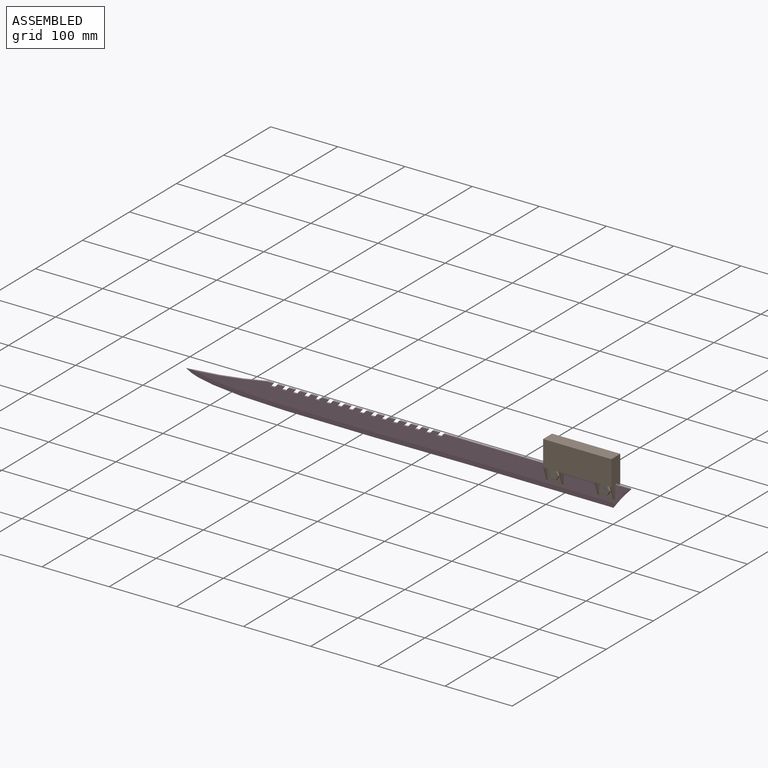
[diagram: assembled view]
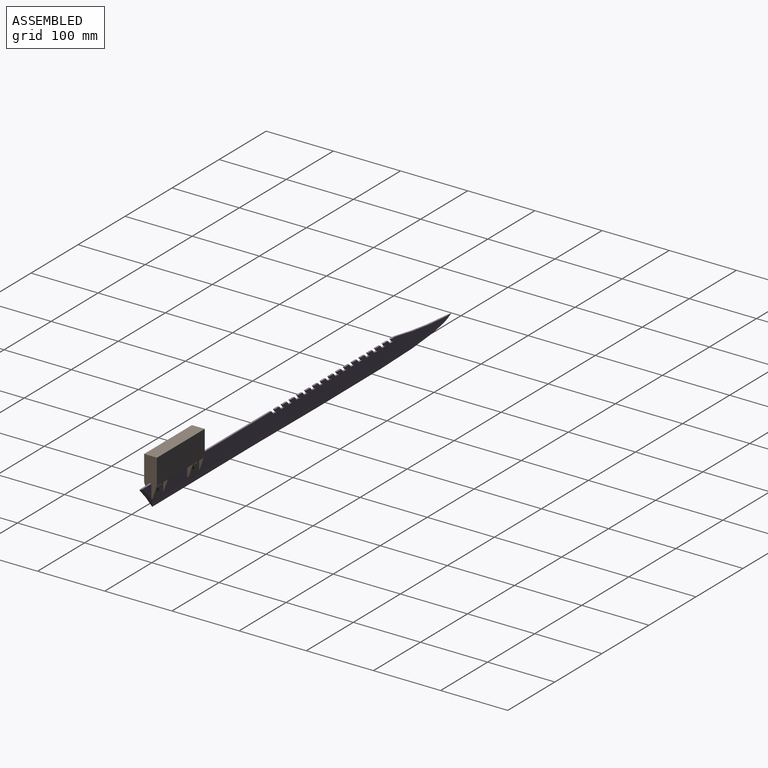
[diagram: assembled view, second angle]
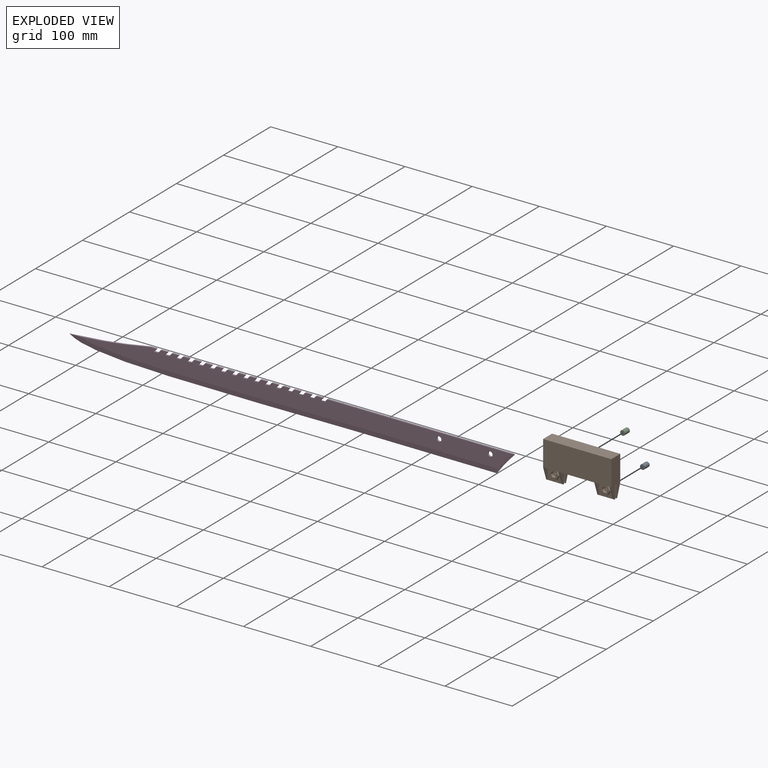
[diagram: exploded view]
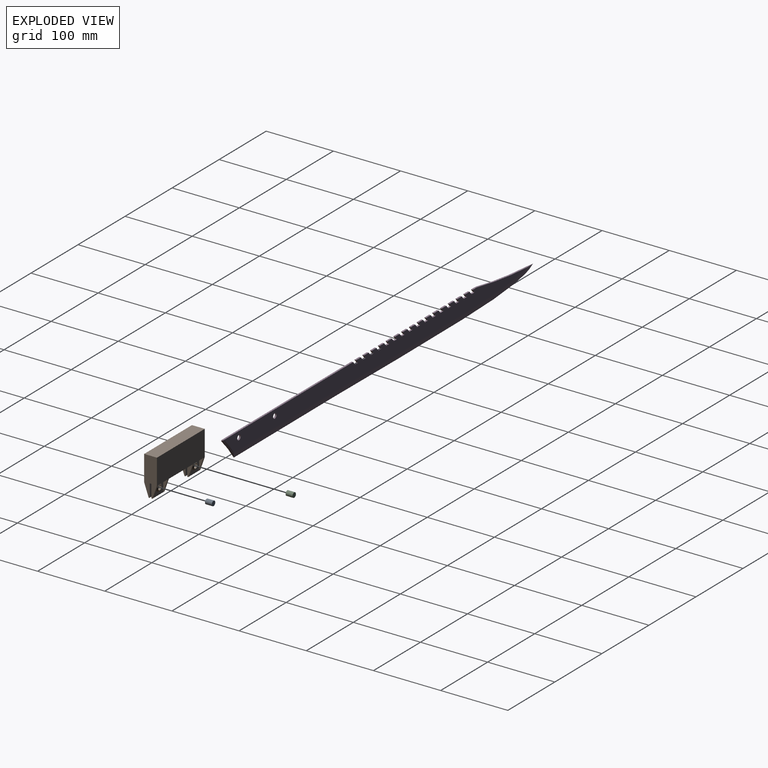
[diagram: exploded view, second angle]
ASSEMBLY  parts=4 mates=6
PART A: 3 faces, bbox 7.3x10.3x7.3 mm
  f0: plane 7.26x7.26mm, normal (0,-1,0), area 41.4mm2, adj f2
  f1: plane 7.26x7.26mm, normal (0,1,0), area 41.4mm2, adj f2
  f2: cylinder r=3.63mm len=10.29mm, axis (0,1,0), area 234.8mm2, adj f0,f1
PART B: 114 faces, bbox 101.6x19.1x57.2 mm
  f0: plane 7.77x7.77mm, normal (0,-1,0), area 5.4mm2, adj f1,f2
  f1: torus R=3.89mm, axis (0,-1,0), area 6.7mm2, adj f0,f3
  f2: cylinder r=3.66mm len=7.32mm, axis (0,-1,0), area 46.2mm2, adj f0,f67
  f3: cylinder r=3.66mm len=7.32mm, axis (0,-1,0), area 29.9mm2, adj f1,f57
  f4: plane 101.48x37.67mm, normal (0,-1,0), area 3822.5mm2, adj f12,f19,f24,f25
  f5: plane 101.48x37.67mm, normal (0,1,0), area 3822.5mm2, adj f11,f25,f26,f32
  f6: plane 18x6.3mm, normal (0,-0.94,-0.33), area 47.3mm2, adj f14,f19,f78,f79
  f7: plane 18x6.3mm, normal (0,-0.94,-0.33), area 47.3mm2, adj f19,f22,f36,f68
  f8: plane 18x6.3mm, normal (0,0.94,-0.33), area 47.3mm2, adj f16,f32,f38,f64
  f9: plane 18x6.3mm, normal (0,0.94,-0.33), area 48.4mm2, adj f32,f40,f64,f65
  f10: torus R=2.48mm, axis (1,0,0), area 0.1mm2, adj f11,f16,f32,f51
  f11: cylinder r=0.06mm len=37.67mm, axis (0,0,-1), area 3.6mm2, adj f5,f10,f25,f51
  f12: cylinder r=0.06mm len=37.67mm, axis (0,0,1), area 3.6mm2, adj f4,f13,f25,f51
  f13: torus R=2.48mm, axis (1,0,0), area 0.1mm2, adj f12,f14,f19,f51
  f14: cylinder r=0.06mm len=18.02mm, axis (0,0.33,-0.94), area 1.8mm2, adj f6,f13,f17,f51
  f15: torus R=0.9mm, axis (1,0,0), area 0.1mm2, adj f16,f41,f51,f64
  f16: cylinder r=0.06mm len=18.02mm, axis (0,0.33,0.94), area 1.8mm2, adj f8,f10,f15,f51
  f17: torus R=0.9mm, axis (1,0,0), area 0.1mm2, adj f14,f51,f52,f78
  f18: plane 18x6.3mm, normal (0,-0.94,-0.33), area 48.4mm2, adj f19,f34,f53,f78
  f19: cylinder r=2.54mm len=101.48mm, axis (1,0,0), area 48.2mm2, adj f4,f6,f7,f13,f18,f20,f23,f33
  f20: plane 18x6.3mm, normal (0,-0.94,-0.33), area 48.4mm2, adj f19,f55,f68,f69
  f21: torus R=0.9mm, axis (1,0,0), area 0.1mm2, adj f22,f56,f60,f68
  f22: cylinder r=0.06mm len=18.02mm, axis (0,0.33,-0.94), area 1.8mm2, adj f7,f21,f23,f60
  f23: torus R=2.48mm, axis (1,0,0), area 0.1mm2, adj f19,f22,f24,f60
  f24: cylinder r=0.06mm len=37.67mm, axis (0,0,-1), area 3.6mm2, adj f4,f23,f25,f60
  f25: plane 101.6x19.05mm, normal (0,0,1), area 1935.5mm2, adj f4,f5,f11,f12,f24,f26,f51,f60
  f26: cylinder r=0.06mm len=37.67mm, axis (0,0,1), area 3.6mm2, adj f5,f25,f27,f60
  f27: torus R=2.48mm, axis (1,0,0), area 0.1mm2, adj f26,f28,f32,f60
  f28: cylinder r=0.06mm len=18.02mm, axis (0,0.33,0.94), area 1.8mm2, adj f27,f30,f31,f60
  f29: plane 18x6.3mm, normal (0,0.94,-0.33), area 48.4mm2, adj f32,f44,f45,f49
  f30: torus R=0.9mm, axis (1,0,0), area 0.1mm2, adj f28,f42,f45,f60
  f31: plane 18x6.3mm, normal (0,0.94,-0.33), area 47.3mm2, adj f28,f32,f45,f46
  f32: cylinder r=2.54mm len=101.48mm, axis (-1,0,0), area 48.2mm2, adj f5,f8,f9,f10,f27,f29,f31,f37
  f33: plane 20.32x6.63mm, normal (0,0,-1), area 134.7mm2, adj f19,f34,f79,f80
  f34: plane 18.77x6.63mm, normal (-1,0,0), area 63.5mm2, adj f18,f19,f33,f78,f80
  f35: plane 20.32x6.63mm, normal (0,0,-1), area 134.7mm2, adj f19,f36,f69,f70
  f36: plane 18.77x6.63mm, normal (-1,0,0), area 63.5mm2, adj f7,f19,f35,f68,f70
  f37: plane 20.32x6.63mm, normal (0,0,-1), area 134.7mm2, adj f32,f38,f65,f66
  f38: plane 18.76x6.63mm, normal (1,0,0), area 63.5mm2, adj f8,f32,f37,f64,f66
  f39: plane 50.8x8.22mm, normal (0,0,-1), area 417.5mm2, adj f32,f40,f49,f58
  f40: plane 19.05x8.22mm, normal (1,0,0), area 93.5mm2, adj f9,f32,f39,f41,f58,f64
  f41: cylinder r=0.97mm len=25.4mm, axis (1,0,0), area 37.7mm2, adj f15,f40,f51,f58,f64
  f42: cylinder r=0.97mm len=25.4mm, axis (1,0,0), area 37.7mm2, adj f30,f45,f49,f58,f60
  f43: plane 20.32x6.63mm, normal (0,0,-1), area 134.7mm2, adj f32,f44,f46,f47
  f44: plane 18.76x6.63mm, normal (1,0,0), area 63.5mm2, adj f29,f32,f43,f45,f47
  f45: cylinder r=0.97mm len=25.34mm, axis (-1,0,0), area 20.7mm2, adj f29,f30,f31,f42,f44,f46,f47,f49
  f46: plane 18.76x6.63mm, normal (-1,0,0), area 63.5mm2, adj f31,f32,f43,f45,f47
  f47: plane 20.32x18.76mm, normal (0,1,0), area 280.4mm2, adj f43,f44,f45,f46,f48
  f48: torus R=0.78mm, axis (0,-1,0), area 85.7mm2, adj f47,f94
  f49: plane 19.05x8.22mm, normal (-1,0,0), area 93.5mm2, adj f29,f32,f39,f42,f45,f58
  f50: plane 101.6x2.54mm, normal (0,0,-1), area 258.1mm2, adj f51,f58,f60,f62
  f51: plane 57.09x18.93mm, normal (-1,0,0), area 903.6mm2, adj f10,f11,f12,f13,f14,f15,f16,f17
  f52: cylinder r=0.97mm len=25.4mm, axis (-1,0,0), area 37.7mm2, adj f17,f51,f53,f62,f78
  f53: plane 19.05x8.22mm, normal (1,0,0), area 93.5mm2, adj f18,f19,f52,f54,f62,f78
  f54: plane 50.8x8.22mm, normal (0,0,-1), area 417.5mm2, adj f19,f53,f55,f62
  f55: plane 19.05x8.22mm, normal (-1,0,0), area 93.5mm2, adj f19,f20,f54,f56,f62,f68
  f56: cylinder r=0.97mm len=25.4mm, axis (-1,0,0), area 37.7mm2, adj f21,f55,f60,f62,f68
  f57: torus R=3.89mm, axis (0,-1,0), area 6.7mm2, adj f3,f58
  f58: plane 101.6x18.85mm, normal (0,-1,0), area 901.2mm2, adj f39,f40,f41,f42,f49,f50,f51,f57
  f59: torus R=3.89mm, axis (0,-1,0), area 6.7mm2, adj f58,f99
  f60: plane 57.09x18.93mm, normal (1,0,0), area 903.6mm2, adj f21,f22,f23,f24,f25,f26,f27,f28
  f61: torus R=3.89mm, axis (0,1,0), area 6.7mm2, adj f62,f97
  f62: plane 101.6x18.85mm, normal (0,1,0), area 901.2mm2, adj f50,f51,f52,f53,f54,f55,f56,f60
  f63: torus R=3.89mm, axis (0,1,0), area 6.7mm2, adj f62,f98
  f64: cylinder r=0.97mm len=25.34mm, axis (1,0,0), area 20.7mm2, adj f8,f9,f15,f38,f40,f41,f65,f66
  f65: plane 18.76x6.63mm, normal (-1,0,0), area 63.5mm2, adj f9,f32,f37,f64,f66
  f66: plane 20.32x18.76mm, normal (0,1,0), area 280.4mm2, adj f37,f38,f64,f65,f67
  f67: torus R=0.78mm, axis (0,-1,0), area 85.7mm2, adj f2,f66
  f68: cylinder r=0.97mm len=25.34mm, axis (-1,0,0), area 20.7mm2, adj f7,f20,f21,f36,f55,f56,f69,f70
  f69: plane 18.77x6.63mm, normal (1,0,0), area 63.5mm2, adj f19,f20,f35,f68,f70
  f70: plane 20.32x18.77mm, normal (0,-1,0), area 234.4mm2, adj f35,f36,f68,f69,f71,f72,f73,f74
  f71: plane 7.52x2.11mm, normal (0,0,1), area 15.9mm2, adj f70,f72,f76,f109
  f72: plane 6.51x3.76mm, normal (0.87,0,0.5), area 15.9mm2, adj f70,f71,f73,f111
  f73: plane 6.51x3.76mm, normal (0.87,0,-0.5), area 15.9mm2, adj f70,f72,f74,f110
  f74: plane 7.52x2.11mm, normal (0,0,-1), area 15.9mm2, adj f70,f73,f75,f108
  f75: plane 6.51x3.76mm, normal (-0.87,0,-0.5), area 15.9mm2, adj f70,f74,f76,f106
  f76: plane 6.51x3.76mm, normal (-0.87,0,0.5), area 15.9mm2, adj f70,f71,f75,f107
  f77: plane 13.87x12.01mm, normal (0,-1,0), area 76.9mm2, adj f106,f107,f108,f109,f110,f111,f113
  f78: cylinder r=0.97mm len=25.34mm, axis (-1,0,0), area 20.7mm2, adj f6,f17,f18,f34,f52,f53,f79,f80
  f79: plane 18.77x6.63mm, normal (1,0,0), area 63.5mm2, adj f6,f19,f33,f78,f80
  f80: plane 20.32x18.77mm, normal (0,-1,0), area 234.4mm2, adj f33,f34,f78,f79,f81,f82,f83,f84
  f81: plane 6.51x3.76mm, normal (0.87,0,-0.5), area 15.9mm2, adj f80,f82,f86,f104
  f82: plane 7.52x2.11mm, normal (0,0,-1), area 15.9mm2, adj f80,f81,f83,f105
  f83: plane 6.51x3.76mm, normal (-0.87,0,-0.5), area 15.9mm2, adj f80,f82,f84,f103
  f84: plane 6.51x3.76mm, normal (-0.87,0,0.5), area 15.9mm2, adj f80,f83,f85,f101
  f85: plane 7.52x2.11mm, normal (0,0,1), area 15.9mm2, adj f80,f84,f86,f100
  f86: plane 6.51x3.76mm, normal (0.87,0,0.5), area 15.9mm2, adj f80,f81,f85,f102
  f87: plane 13.87x12.01mm, normal (0,-1,0), area 76.9mm2, adj f100,f101,f102,f103,f104,f105,f112
  f88: cylinder r=3.66mm len=7.32mm, axis (0,-1,0), area 54.3mm2, adj f89,f113
  f89: plane 7.77x7.77mm, normal (0,1,0), area 5.4mm2, adj f88,f90
  f90: torus R=3.89mm, axis (0,1,0), area 6.7mm2, adj f89,f98
  f91: cylinder r=3.66mm len=7.32mm, axis (0,-1,0), area 54.3mm2, adj f92,f112
  f92: plane 7.77x7.77mm, normal (0,1,0), area 5.4mm2, adj f91,f93
  f93: torus R=3.89mm, axis (0,1,0), area 6.7mm2, adj f92,f97
  f94: cylinder r=3.66mm len=7.32mm, axis (0,-1,0), area 46.2mm2, adj f48,f96
  f95: torus R=3.89mm, axis (0,-1,0), area 6.7mm2, adj f96,f99
  f96: plane 7.77x7.77mm, normal (0,-1,0), area 5.4mm2, adj f94,f95
  f97: cylinder r=3.66mm len=7.32mm, axis (0,-1,0), area 29.9mm2, adj f61,f93
  f98: cylinder r=3.66mm len=7.32mm, axis (0,-1,0), area 29.9mm2, adj f63,f90
  f99: cylinder r=3.66mm len=7.32mm, axis (0,-1,0), area 29.9mm2, adj f59,f95
  f100: cylinder r=0.51mm len=7.52mm, axis (1,0,0), area 5.8mm2, adj f85,f87,f101,f102
  f101: cylinder r=0.51mm len=6.77mm, axis (0.5,0,0.87), area 5.8mm2, adj f84,f87,f100,f103
  f102: cylinder r=0.51mm len=6.77mm, axis (0.5,0,-0.87), area 5.8mm2, adj f86,f87,f100,f104
  f103: cylinder r=0.51mm len=6.77mm, axis (-0.5,0,0.87), area 5.8mm2, adj f83,f87,f101,f105
  f104: cylinder r=0.51mm len=6.77mm, axis (-0.5,0,-0.87), area 5.8mm2, adj f81,f87,f102,f105
  f105: cylinder r=0.51mm len=7.52mm, axis (-1,0,0), area 5.8mm2, adj f82,f87,f103,f104
  f106: cylinder r=0.51mm len=6.77mm, axis (-0.5,0,0.87), area 5.8mm2, adj f75,f77,f107,f108
  f107: cylinder r=0.51mm len=6.77mm, axis (0.5,0,0.87), area 5.8mm2, adj f76,f77,f106,f109
  f108: cylinder r=0.51mm len=7.52mm, axis (-1,0,0), area 5.8mm2, adj f74,f77,f106,f110
  f109: cylinder r=0.51mm len=7.52mm, axis (1,0,0), area 5.8mm2, adj f71,f77,f107,f111
  f110: cylinder r=0.51mm len=6.77mm, axis (-0.5,0,-0.87), area 5.8mm2, adj f73,f77,f108,f111
  f111: cylinder r=0.51mm len=6.77mm, axis (0.5,0,-0.87), area 5.8mm2, adj f72,f77,f109,f110
  f112: torus R=3.91mm, axis (0,-1,0), area 9.4mm2, adj f87,f91
  f113: torus R=3.91mm, axis (0,-1,0), area 9.4mm2, adj f77,f88
PART C: 3 faces, bbox 7.3x10.3x7.3 mm
  f0: plane 7.26x7.26mm, normal (0,-1,0), area 41.4mm2, adj f2
  f1: plane 7.26x7.26mm, normal (0,1,0), area 41.4mm2, adj f2
  f2: cylinder r=3.63mm len=10.29mm, axis (0,1,0), area 234.8mm2, adj f0,f1
PART D: 125 faces, bbox 676.6x13.4x45.5 mm
  f0: plane 6.67x2.49mm, normal (0,0,1), area 16.6mm2, adj f31,f47,f49,f122
  f1: plane 10.16x2.49mm, normal (0,0,1), area 25.3mm2, adj f16,f32,f119,f121
  f2: plane 10.16x2.49mm, normal (0,0,1), area 25.3mm2, adj f17,f33,f116,f118
  f3: plane 10.16x2.49mm, normal (0,0,1), area 25.3mm2, adj f18,f34,f113,f115
  f4: plane 10.16x2.49mm, normal (0,0,1), area 25.3mm2, adj f19,f35,f110,f112
  f5: plane 10.16x2.49mm, normal (0,0,1), area 25.3mm2, adj f20,f36,f107,f109
  f6: plane 10.16x2.49mm, normal (0,0,1), area 25.3mm2, adj f21,f37,f104,f106
  f7: plane 10.16x2.49mm, normal (0,0,1), area 25.3mm2, adj f22,f38,f101,f103
  f8: plane 10.16x2.49mm, normal (0,0,1), area 25.3mm2, adj f23,f39,f98,f100
  f9: plane 10.16x2.49mm, normal (0,0,1), area 25.3mm2, adj f24,f40,f95,f97
  f10: plane 10.16x2.49mm, normal (0,0,1), area 25.3mm2, adj f25,f41,f92,f94
  f11: plane 10.16x2.49mm, normal (0,0,1), area 25.3mm2, adj f26,f42,f89,f91
  f12: plane 10.16x2.49mm, normal (0,0,1), area 25.3mm2, adj f27,f43,f86,f88
  f13: plane 10.16x2.49mm, normal (0,0,1), area 25.3mm2, adj f28,f44,f83,f85
  f14: plane 10.16x2.49mm, normal (0,0,1), area 25.3mm2, adj f29,f45,f80,f82
  f15: plane 10.16x2.49mm, normal (0,0,1), area 25.3mm2, adj f30,f46,f76,f79
  f16: cylinder r=0.03mm len=10.18mm, axis (1,0,0), area 0.4mm2, adj f1,f51,f119,f121
  f17: cylinder r=0.03mm len=10.18mm, axis (1,0,0), area 0.4mm2, adj f2,f51,f116,f118
  f18: cylinder r=0.03mm len=10.18mm, axis (1,0,0), area 0.4mm2, adj f3,f51,f113,f115
  f19: cylinder r=0.03mm len=10.18mm, axis (1,0,0), area 0.4mm2, adj f4,f51,f110,f112
  f20: cylinder r=0.03mm len=10.18mm, axis (1,0,0), area 0.4mm2, adj f5,f51,f107,f109
  f21: cylinder r=0.03mm len=10.18mm, axis (1,0,0), area 0.4mm2, adj f6,f51,f104,f106
  f22: cylinder r=0.03mm len=10.18mm, axis (1,0,0), area 0.4mm2, adj f7,f51,f101,f103
  f23: cylinder r=0.03mm len=10.18mm, axis (1,0,0), area 0.4mm2, adj f8,f51,f98,f100
  f24: cylinder r=0.03mm len=10.18mm, axis (1,0,0), area 0.4mm2, adj f9,f51,f95,f97
  f25: cylinder r=0.03mm len=10.18mm, axis (1,0,0), area 0.4mm2, adj f10,f51,f92,f94
  f26: cylinder r=0.03mm len=10.18mm, axis (1,0,0), area 0.4mm2, adj f11,f51,f89,f91
  f27: cylinder r=0.03mm len=10.18mm, axis (1,0,0), area 0.4mm2, adj f12,f51,f86,f88
  f28: cylinder r=0.03mm len=10.18mm, axis (1,0,0), area 0.4mm2, adj f13,f51,f83,f85
  f29: cylinder r=0.03mm len=10.18mm, axis (1,0,0), area 0.4mm2, adj f14,f51,f80,f82
  f30: cylinder r=0.03mm len=10.18mm, axis (1,0,0), area 0.4mm2, adj f15,f51,f76,f79
  f31: cylinder r=0.03mm len=6.67mm, axis (1,0,0), area 0.3mm2, adj f0,f51,f68,f122
  f32: cylinder r=0.03mm len=10.18mm, axis (-1,0,0), area 0.4mm2, adj f1,f52,f119,f121
  f33: cylinder r=0.03mm len=10.18mm, axis (-1,0,0), area 0.4mm2, adj f2,f52,f116,f118
  f34: cylinder r=0.03mm len=10.18mm, axis (-1,0,0), area 0.4mm2, adj f3,f52,f113,f115
  f35: cylinder r=0.03mm len=10.18mm, axis (-1,0,0), area 0.4mm2, adj f4,f52,f110,f112
  f36: cylinder r=0.03mm len=10.18mm, axis (-1,0,0), area 0.4mm2, adj f5,f52,f107,f109
  f37: cylinder r=0.03mm len=10.18mm, axis (-1,0,0), area 0.4mm2, adj f6,f52,f104,f106
  f38: cylinder r=0.03mm len=10.18mm, axis (-1,0,0), area 0.4mm2, adj f7,f52,f101,f103
  f39: cylinder r=0.03mm len=10.18mm, axis (-1,0,0), area 0.4mm2, adj f8,f52,f98,f100
  f40: cylinder r=0.03mm len=10.18mm, axis (-1,0,0), area 0.4mm2, adj f9,f52,f95,f97
  f41: cylinder r=0.03mm len=10.18mm, axis (-1,0,0), area 0.4mm2, adj f10,f52,f92,f94
  f42: cylinder r=0.03mm len=10.18mm, axis (-1,0,0), area 0.4mm2, adj f11,f52,f89,f91
  f43: cylinder r=0.03mm len=10.18mm, axis (-1,0,0), area 0.4mm2, adj f12,f52,f86,f88
  f44: cylinder r=0.03mm len=10.18mm, axis (-1,0,0), area 0.4mm2, adj f13,f52,f83,f85
  f45: cylinder r=0.03mm len=10.18mm, axis (-1,0,0), area 0.4mm2, adj f14,f52,f80,f82
  f46: cylinder r=0.03mm len=10.18mm, axis (-1,0,0), area 0.4mm2, adj f15,f52,f76,f79
  f47: cylinder r=0.03mm len=6.67mm, axis (-1,0,0), area 0.3mm2, adj f0,f52,f69,f122
  f48: plane 278.84x2.49mm, normal (0,0,1), area 690.9mm2, adj f70,f71,f72,f73,f74,f77
  f49: cylinder r=25.87mm len=5.08mm, axis (0,1,0), area 12.7mm2, adj f0,f50,f68,f69
  f50: cylinder r=762mm len=118.46mm, axis (0,1,0), area 279.4mm2, adj f49,f62,f63,f64,f65,f66,f67
  f51: plane 643.7x26.75mm, normal (0,-1,0), area 14051.7mm2, adj f16,f17,f18,f19,f20,f21,f22,f23
  f52: plane 643.7x26.75mm, normal (0,1,0), area 14051.7mm2, adj f32,f33,f34,f35,f36,f37,f38,f39
  f53: bspline ~153.82x30.21mm, area 984mm2, adj f54,f55,f57,f62
  f54: bspline ~153.82x30.21mm, area 984mm2, adj f53,f56,f58,f63
  f55: bspline ~518.88x13.93mm, area 3559.4mm2, adj f51,f53,f56,f57,f60,f61
  f56: bspline ~518.88x13.93mm, area 3559.5mm2, adj f52,f54,f55,f58,f59,f61
  f57: bspline ~290.36x14.4mm, area 168.6mm2, adj f51,f53,f55,f64
  f58: bspline ~290.47x14.64mm, area 168.6mm2, adj f52,f54,f56,f65
  f59: bspline ~38.7x37.12mm, area 149.9mm2, adj f52,f56,f61,f73
  f60: bspline ~38.7x37.12mm, area 150.2mm2, adj f51,f55,f61,f72
  f61: bspline ~37.11x31.05mm, area 19.1mm2, adj f55,f56,f59,f60,f74
  f62: bspline ~25.71x2.13mm, area 0.6mm2, adj f50,f53,f63,f64
  f63: bspline ~25.71x2.13mm, area 0.6mm2, adj f50,f54,f62,f65
  f64: bspline ~5.67x0.37mm, area 0.1mm2, adj f50,f57,f62,f66
  f65: bspline ~5.34x0.35mm, area 0.1mm2, adj f50,f58,f63,f67
  f66: torus R=762.03mm, axis (0,-1,0), area 4.1mm2, adj f50,f51,f64,f68
  f67: torus R=762.03mm, axis (0,-1,0), area 4.1mm2, adj f50,f52,f65,f69
  f68: torus R=25.85mm, axis (0,-1,0), area 0.2mm2, adj f31,f49,f51,f66
  f69: torus R=25.85mm, axis (0,-1,0), area 0.2mm2, adj f47,f49,f52,f67
  f70: cylinder r=0.03mm len=274.43mm, axis (1,0,0), area 10.9mm2, adj f48,f51,f72,f77
  f71: cylinder r=0.03mm len=274.43mm, axis (-1,0,0), area 10.9mm2, adj f48,f52,f73,f77
  f72: bspline ~7.14x1.84mm, area 0.2mm2, adj f48,f60,f70,f74
  f73: bspline ~6.33x1.25mm, area 0.2mm2, adj f48,f59,f71,f74
  f74: bspline ~0.49x0.26mm, area 0mm2, adj f48,f61,f72,f73
  f75: plane 6.35x2.54mm, normal (0,0,1), area 16.1mm2, adj f51,f52,f76,f77
  f76: plane 4.87x4.09mm, normal (0.77,0,-0.64), area 16.1mm2, adj f15,f30,f46,f51,f52,f75
  f77: plane 4.87x4.09mm, normal (-0.77,0,0.64), area 16.1mm2, adj f48,f51,f52,f70,f71,f75
  f78: plane 6.35x2.54mm, normal (0,0,1), area 16.1mm2, adj f51,f52,f79,f80
  f79: plane 4.87x4.09mm, normal (-0.77,0,0.64), area 16.1mm2, adj f15,f30,f46,f51,f52,f78
  f80: plane 4.87x4.09mm, normal (0.77,0,-0.64), area 16.1mm2, adj f14,f29,f45,f51,f52,f78
  f81: plane 6.35x2.54mm, normal (0,0,1), area 16.1mm2, adj f51,f52,f82,f83
  f82: plane 4.87x4.09mm, normal (-0.77,0,0.64), area 16.1mm2, adj f14,f29,f45,f51,f52,f81
  f83: plane 4.87x4.09mm, normal (0.77,0,-0.64), area 16.1mm2, adj f13,f28,f44,f51,f52,f81
  f84: plane 6.35x2.54mm, normal (0,0,1), area 16.1mm2, adj f51,f52,f85,f86
  f85: plane 4.87x4.09mm, normal (-0.77,0,0.64), area 16.1mm2, adj f13,f28,f44,f51,f52,f84
  f86: plane 4.87x4.09mm, normal (0.77,0,-0.64), area 16.1mm2, adj f12,f27,f43,f51,f52,f84
  f87: plane 6.35x2.54mm, normal (0,0,1), area 16.1mm2, adj f51,f52,f88,f89
  f88: plane 4.87x4.09mm, normal (-0.77,0,0.64), area 16.1mm2, adj f12,f27,f43,f51,f52,f87
  f89: plane 4.87x4.09mm, normal (0.77,0,-0.64), area 16.1mm2, adj f11,f26,f42,f51,f52,f87
  f90: plane 6.35x2.54mm, normal (0,0,1), area 16.1mm2, adj f51,f52,f91,f92
  f91: plane 4.87x4.09mm, normal (-0.77,0,0.64), area 16.1mm2, adj f11,f26,f42,f51,f52,f90
  f92: plane 4.87x4.09mm, normal (0.77,0,-0.64), area 16.1mm2, adj f10,f25,f41,f51,f52,f90
  f93: plane 6.35x2.54mm, normal (0,0,1), area 16.1mm2, adj f51,f52,f94,f95
  f94: plane 4.87x4.09mm, normal (-0.77,0,0.64), area 16.1mm2, adj f10,f25,f41,f51,f52,f93
  f95: plane 4.87x4.09mm, normal (0.77,0,-0.64), area 16.1mm2, adj f9,f24,f40,f51,f52,f93
  f96: plane 6.35x2.54mm, normal (0,0,1), area 16.1mm2, adj f51,f52,f97,f98
  f97: plane 4.87x4.09mm, normal (-0.77,0,0.64), area 16.1mm2, adj f9,f24,f40,f51,f52,f96
  f98: plane 4.87x4.09mm, normal (0.77,0,-0.64), area 16.1mm2, adj f8,f23,f39,f51,f52,f96
  f99: plane 6.35x2.54mm, normal (0,0,1), area 16.1mm2, adj f51,f52,f100,f101
  f100: plane 4.87x4.09mm, normal (-0.77,0,0.64), area 16.1mm2, adj f8,f23,f39,f51,f52,f99
  f101: plane 4.87x4.09mm, normal (0.77,0,-0.64), area 16.1mm2, adj f7,f22,f38,f51,f52,f99
  f102: plane 6.35x2.54mm, normal (0,0,1), area 16.1mm2, adj f51,f52,f103,f104
  f103: plane 4.87x4.09mm, normal (-0.77,0,0.64), area 16.1mm2, adj f7,f22,f38,f51,f52,f102
  f104: plane 4.87x4.09mm, normal (0.77,0,-0.64), area 16.1mm2, adj f6,f21,f37,f51,f52,f102
  f105: plane 6.35x2.54mm, normal (0,0,1), area 16.1mm2, adj f51,f52,f106,f107
  f106: plane 4.87x4.09mm, normal (-0.77,0,0.64), area 16.1mm2, adj f6,f21,f37,f51,f52,f105
  f107: plane 4.87x4.09mm, normal (0.77,0,-0.64), area 16.1mm2, adj f5,f20,f36,f51,f52,f105
  f108: plane 6.35x2.54mm, normal (0,0,1), area 16.1mm2, adj f51,f52,f109,f110
  f109: plane 4.87x4.09mm, normal (-0.77,0,0.64), area 16.1mm2, adj f5,f20,f36,f51,f52,f108
  f110: plane 4.87x4.09mm, normal (0.77,0,-0.64), area 16.1mm2, adj f4,f19,f35,f51,f52,f108
  f111: plane 6.35x2.54mm, normal (0,0,1), area 16.1mm2, adj f51,f52,f112,f113
  f112: plane 4.87x4.09mm, normal (-0.77,0,0.64), area 16.1mm2, adj f4,f19,f35,f51,f52,f111
  f113: plane 4.87x4.09mm, normal (0.77,0,-0.64), area 16.1mm2, adj f3,f18,f34,f51,f52,f111
  f114: plane 6.35x2.54mm, normal (0,0,1), area 16.1mm2, adj f51,f52,f115,f116
  f115: plane 4.87x4.09mm, normal (-0.77,0,0.64), area 16.1mm2, adj f3,f18,f34,f51,f52,f114
  f116: plane 4.87x4.09mm, normal (0.77,0,-0.64), area 16.1mm2, adj f2,f17,f33,f51,f52,f114
  f117: plane 6.35x2.54mm, normal (0,0,1), area 16.1mm2, adj f51,f52,f118,f119
  f118: plane 4.87x4.09mm, normal (-0.77,0,0.64), area 16.1mm2, adj f2,f17,f33,f51,f52,f117
  f119: plane 4.87x4.09mm, normal (0.77,0,-0.64), area 16.1mm2, adj f1,f16,f32,f51,f52,f117
  f120: plane 6.35x2.54mm, normal (0,0,1), area 16.1mm2, adj f51,f52,f121,f122
  f121: plane 4.87x4.09mm, normal (-0.77,0,0.64), area 16.1mm2, adj f1,f16,f32,f51,f52,f120
  f122: plane 4.87x4.09mm, normal (0.77,0,-0.64), area 16.1mm2, adj f0,f31,f47,f51,f52,f120
  f123: cylinder r=3.63mm len=7.26mm, axis (0,-1,0), area 58mm2, adj f51,f52
  f124: cylinder r=3.63mm len=7.26mm, axis (0,-1,0), area 58mm2, adj f51,f52
PLACE A t=(-749.16,-79.22,-57.28)mm
PLACE B t=(-749.16,-79.14,-57.28)mm
PLACE C t=(-749.16,-79.22,-57.28)mm
PLACE D t=(-584.84,-79.14,28.42)mm
MATE planar C.f2 <-> B.f1  axis (0,-1,0) through (-699.38,-84.61,19.52)mm
MATE planar A.f2 <-> B.f77  axis (0,-1,0) through (-623.18,-84.61,19.52)mm
MATE cylindrical A.f2 <-> D.f123  axis (0,1,0) through (-623.18,-79.47,19.52)mm
MATE planar B.f62 <-> D.f51  axis (0,1,0) through (-661.28,-80.41,19.29)mm
MATE cylindrical B.f48 <-> A.f2  axis (0,-1,0) through (-623.18,-84.36,19.52)mm
MATE cylindrical C.f2 <-> B.f1  axis (0,1,0) through (-699.38,-79.47,19.52)mm
